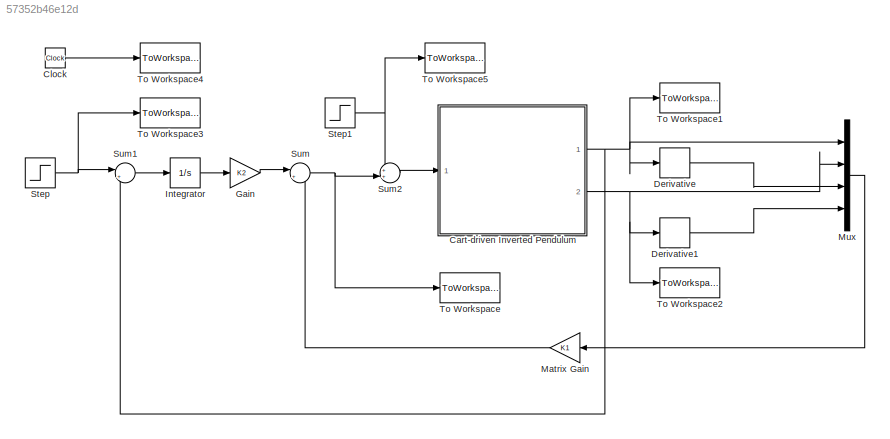
MODEL slx_57352b46e12d
KIND model
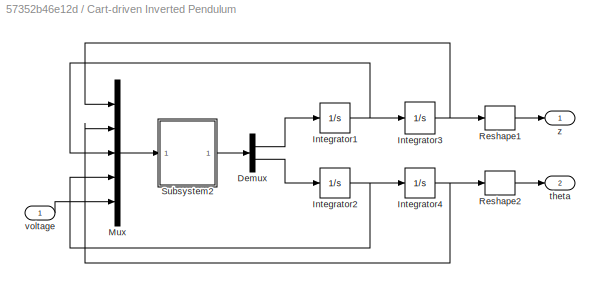
BLOCK [SubSystem] Cart-driven Inverted Pendulum
  FunctionWithSeparateData = off
  MaskHideContents = off
  MinAlgLoopOccurrences = off
  Opaque = off
  Ports = [1, 2]
  PropExecContextOutsideSubsystem = off
  RTWSystemCode = Auto
  RequestExecContextInheritance = off
BLOCK [Demux] Cart-driven Inverted Pendulum/Demux
  DisplayOption = bar
  Outputs = 2
  Ports = [1, 2]
BLOCK [Integrator] Cart-driven Inverted Pendulum/Integrator1
  InitialCondition = dz_0
  Ports = [1, 1]
BLOCK [Integrator] Cart-driven Inverted Pendulum/Integrator2
  InitialCondition = dtheta_0
  Ports = [1, 1]
BLOCK [Integrator] Cart-driven Inverted Pendulum/Integrator3
  InitialCondition = z_0
  Ports = [1, 1]
BLOCK [Integrator] Cart-driven Inverted Pendulum/Integrator4
  InitialCondition = theta_0
  Ports = [1, 1]
BLOCK [Mux] Cart-driven Inverted Pendulum/Mux
  DisplayOption = bar
  Inputs = 5
  Ports = [5, 1]
BLOCK [Reshape] Cart-driven Inverted Pendulum/Reshape1
  Ports = [1, 1]
BLOCK [Reshape] Cart-driven Inverted Pendulum/Reshape2
  Ports = [1, 1]
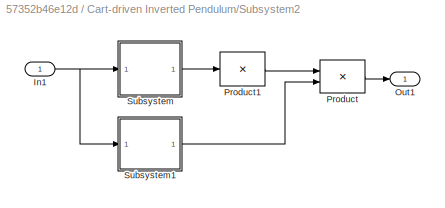
BLOCK [SubSystem] Cart-driven Inverted Pendulum/Subsystem2
  FunctionWithSeparateData = off
  MaskHideContents = off
  MinAlgLoopOccurrences = off
  Opaque = off
  Ports = [1, 1]
  PropExecContextOutsideSubsystem = off
  RTWSystemCode = Auto
  RequestExecContextInheritance = off
BLOCK [Inport] Cart-driven Inverted Pendulum/Subsystem2/In1
  IconDisplay = Port number
BLOCK [Outport] Cart-driven Inverted Pendulum/Subsystem2/Out1
  IconDisplay = Port number
BLOCK [Product] Cart-driven Inverted Pendulum/Subsystem2/Product
  Multiplication = Matrix(*)
  Ports = [2, 1]
  RndMeth = Floor
BLOCK [Product] Cart-driven Inverted Pendulum/Subsystem2/Product1
  Inputs = /
  Multiplication = Matrix(*)
  Ports = [1, 1]
  RndMeth = Floor
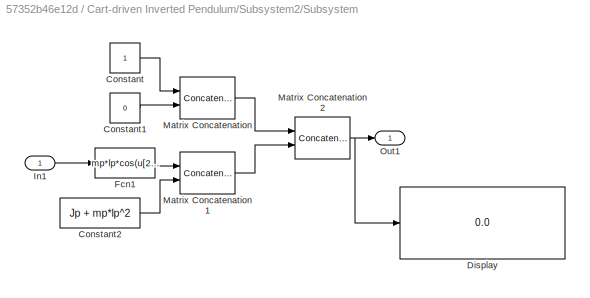
BLOCK [SubSystem] Cart-driven Inverted Pendulum/Subsystem2/Subsystem
  FunctionWithSeparateData = off
  MaskHideContents = off
  MinAlgLoopOccurrences = off
  Opaque = off
  Ports = [1, 1]
  PropExecContextOutsideSubsystem = off
  RTWSystemCode = Auto
  RequestExecContextInheritance = off
BLOCK [Constant] Cart-driven Inverted Pendulum/Subsystem2/Subsystem/Constant
BLOCK [Constant] Cart-driven Inverted Pendulum/Subsystem2/Subsystem/Constant1
  Value = 0
BLOCK [Constant] Cart-driven Inverted Pendulum/Subsystem2/Subsystem/Constant2
  Value = Jp + mp*lp^2
BLOCK [Display] Cart-driven Inverted Pendulum/Subsystem2/Subsystem/Display
  Decimation = 1
  Lockdown = off
  Ports = [1]
BLOCK [Fcn] Cart-driven Inverted Pendulum/Subsystem2/Subsystem/Fcn1
  Expr = mp*lp*cos(u[2])
BLOCK [Inport] Cart-driven Inverted Pendulum/Subsystem2/Subsystem/In1
  IconDisplay = Port number
BLOCK [Concatenate] Cart-driven Inverted Pendulum/Subsystem2/Subsystem/Matrix Concatenation
  ConcatenateDimension = 2
  Mode = Multidimensional array
  Ports = [2, 1]
BLOCK [Concatenate] Cart-driven Inverted Pendulum/Subsystem2/Subsystem/Matrix Concatenation1
  ConcatenateDimension = 2
  Mode = Multidimensional array
  Ports = [2, 1]
BLOCK [Concatenate] Cart-driven Inverted Pendulum/Subsystem2/Subsystem/Matrix Concatenation2
  Mode = Multidimensional array
  Ports = [2, 1]
BLOCK [Outport] Cart-driven Inverted Pendulum/Subsystem2/Subsystem/Out1
  IconDisplay = Port number
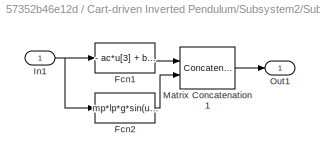
BLOCK [SubSystem] Cart-driven Inverted Pendulum/Subsystem2/Subsystem1
  FunctionWithSeparateData = off
  MaskHideContents = off
  MinAlgLoopOccurrences = off
  Opaque = off
  Ports = [1, 1]
  PropExecContextOutsideSubsystem = off
  RTWSystemCode = Auto
  RequestExecContextInheritance = off
BLOCK [Fcn] Cart-driven Inverted Pendulum/Subsystem2/Subsystem1/Fcn1
  Expr = - ac*u[3] + bc*u[5]
BLOCK [Fcn] Cart-driven Inverted Pendulum/Subsystem2/Subsystem1/Fcn2
  Expr = mp*lp*g*sin(u[2]) - mup*u[4]
BLOCK [Inport] Cart-driven Inverted Pendulum/Subsystem2/Subsystem1/In1
  IconDisplay = Port number
BLOCK [Concatenate] Cart-driven Inverted Pendulum/Subsystem2/Subsystem1/Matrix Concatenation1
  Mode = Multidimensional array
  Ports = [2, 1]
BLOCK [Outport] Cart-driven Inverted Pendulum/Subsystem2/Subsystem1/Out1
  IconDisplay = Port number
BLOCK [Outport] Cart-driven Inverted Pendulum/theta
  IconDisplay = Port number
  Port = 2
BLOCK [Inport] Cart-driven Inverted Pendulum/voltage
  IconDisplay = Port number
BLOCK [Outport] Cart-driven Inverted Pendulum/z
  IconDisplay = Port number
BLOCK [Clock] Clock
BLOCK [Derivative] Derivative
BLOCK [Derivative] Derivative1
BLOCK [Gain] Gain
  Gain = K2
BLOCK [Integrator] Integrator
  Ports = [1, 1]
BLOCK [Gain] Matrix Gain
  Gain = K1
  Multiplication = Matrix(K*u)
BLOCK [Mux] Mux
  DisplayOption = bar
  Ports = [4, 1]
BLOCK [Step] Step
  After = r0
  SampleTime = 0
  Time = 0
BLOCK [Step] Step1
  After = d0
  SampleTime = 0
  Time = t_dis
BLOCK [Sum] Sum
  IconShape = round
  Inputs = |++
  Ports = [2, 1]
BLOCK [Sum] Sum1
  IconShape = round
  Inputs = |+-
  Ports = [2, 1]
BLOCK [Sum] Sum2
  IconShape = round
  Inputs = ++|
  Ports = [2, 1]
BLOCK [ToWorkspace] To Workspace
  MaxDataPoints = inf
  Ports = [1]
  SampleTime = -1
  VariableName = u
BLOCK [ToWorkspace] To Workspace1
  MaxDataPoints = inf
  Ports = [1]
  SampleTime = -1
  VariableName = z
BLOCK [ToWorkspace] To Workspace2
  MaxDataPoints = inf
  Ports = [1]
  SampleTime = -1
  VariableName = theta
BLOCK [ToWorkspace] To Workspace3
  MaxDataPoints = inf
  Ports = [1]
  SampleTime = -1
  VariableName = r
BLOCK [ToWorkspace] To Workspace4
  MaxDataPoints = inf
  Ports = [1]
  SampleTime = -1
  VariableName = t
BLOCK [ToWorkspace] To Workspace5
  MaxDataPoints = inf
  Ports = [1]
  SampleTime = -1
  VariableName = d
LINE Cart-driven Inverted Pendulum/Demux:1 -> Cart-driven Inverted Pendulum/Integrator1:1
LINE Cart-driven Inverted Pendulum/Demux:2 -> Cart-driven Inverted Pendulum/Integrator2:1
NET Cart-driven Inverted Pendulum/Integrator1:1 -> Cart-driven Inverted Pendulum/Integrator3:1, Cart-driven Inverted Pendulum/Mux:3
NET Cart-driven Inverted Pendulum/Integrator2:1 -> Cart-driven Inverted Pendulum/Integrator4:1, Cart-driven Inverted Pendulum/Mux:4
NET Cart-driven Inverted Pendulum/Integrator3:1 -> Cart-driven Inverted Pendulum/Mux:1, Cart-driven Inverted Pendulum/Reshape1:1
NET Cart-driven Inverted Pendulum/Integrator4:1 -> Cart-driven Inverted Pendulum/Mux:2, Cart-driven Inverted Pendulum/Reshape2:1
LINE Cart-driven Inverted Pendulum/Mux:1 -> Cart-driven Inverted Pendulum/Subsystem2:1
LINE Cart-driven Inverted Pendulum/Reshape1:1 -> Cart-driven Inverted Pendulum/z:1
LINE Cart-driven Inverted Pendulum/Reshape2:1 -> Cart-driven Inverted Pendulum/theta:1
NET Cart-driven Inverted Pendulum/Subsystem2/In1:1 -> Cart-driven Inverted Pendulum/Subsystem2/Subsystem1:1, Cart-driven Inverted Pendulum/Subsystem2/Subsystem:1
LINE Cart-driven Inverted Pendulum/Subsystem2/Product1:1 -> Cart-driven Inverted Pendulum/Subsystem2/Product:1
LINE Cart-driven Inverted Pendulum/Subsystem2/Product:1 -> Cart-driven Inverted Pendulum/Subsystem2/Out1:1
LINE Cart-driven Inverted Pendulum/Subsystem2/Subsystem/Constant1:1 -> Cart-driven Inverted Pendulum/Subsystem2/Subsystem/Matrix Concatenation:2
LINE Cart-driven Inverted Pendulum/Subsystem2/Subsystem/Constant2:1 -> Cart-driven Inverted Pendulum/Subsystem2/Subsystem/Matrix Concatenation1:2
LINE Cart-driven Inverted Pendulum/Subsystem2/Subsystem/Constant:1 -> Cart-driven Inverted Pendulum/Subsystem2/Subsystem/Matrix Concatenation:1
LINE Cart-driven Inverted Pendulum/Subsystem2/Subsystem/Fcn1:1 -> Cart-driven Inverted Pendulum/Subsystem2/Subsystem/Matrix Concatenation1:1
LINE Cart-driven Inverted Pendulum/Subsystem2/Subsystem/In1:1 -> Cart-driven Inverted Pendulum/Subsystem2/Subsystem/Fcn1:1
LINE Cart-driven Inverted Pendulum/Subsystem2/Subsystem/Matrix Concatenation1:1 -> Cart-driven Inverted Pendulum/Subsystem2/Subsystem/Matrix Concatenation2:2
NET Cart-driven Inverted Pendulum/Subsystem2/Subsystem/Matrix Concatenation2:1 -> Cart-driven Inverted Pendulum/Subsystem2/Subsystem/Display:1, Cart-driven Inverted Pendulum/Subsystem2/Subsystem/Out1:1
LINE Cart-driven Inverted Pendulum/Subsystem2/Subsystem/Matrix Concatenation:1 -> Cart-driven Inverted Pendulum/Subsystem2/Subsystem/Matrix Concatenation2:1
LINE Cart-driven Inverted Pendulum/Subsystem2/Subsystem1/Fcn1:1 -> Cart-driven Inverted Pendulum/Subsystem2/Subsystem1/Matrix Concatenation1:1
LINE Cart-driven Inverted Pendulum/Subsystem2/Subsystem1/Fcn2:1 -> Cart-driven Inverted Pendulum/Subsystem2/Subsystem1/Matrix Concatenation1:2
NET Cart-driven Inverted Pendulum/Subsystem2/Subsystem1/In1:1 -> Cart-driven Inverted Pendulum/Subsystem2/Subsystem1/Fcn1:1, Cart-driven Inverted Pendulum/Subsystem2/Subsystem1/Fcn2:1
LINE Cart-driven Inverted Pendulum/Subsystem2/Subsystem1/Matrix Concatenation1:1 -> Cart-driven Inverted Pendulum/Subsystem2/Subsystem1/Out1:1
LINE Cart-driven Inverted Pendulum/Subsystem2/Subsystem1:1 -> Cart-driven Inverted Pendulum/Subsystem2/Product:2
LINE Cart-driven Inverted Pendulum/Subsystem2/Subsystem:1 -> Cart-driven Inverted Pendulum/Subsystem2/Product1:1
LINE Cart-driven Inverted Pendulum/Subsystem2:1 -> Cart-driven Inverted Pendulum/Demux:1
LINE Cart-driven Inverted Pendulum/voltage:1 -> Cart-driven Inverted Pendulum/Mux:5
NET Cart-driven Inverted Pendulum:1 -> Derivative:1, Mux:1, Sum1:2, To Workspace1:1
NET Cart-driven Inverted Pendulum:2 -> Derivative1:1, Mux:2, To Workspace2:1
LINE Clock:1 -> To Workspace4:1
LINE Derivative1:1 -> Mux:4
LINE Derivative:1 -> Mux:3
LINE Gain:1 -> Sum:1
LINE Integrator:1 -> Gain:1
LINE Matrix Gain:1 -> Sum:2
LINE Mux:1 -> Matrix Gain:1
NET Step1:1 -> Sum2:1, To Workspace5:1
NET Step:1 -> Sum1:1, To Workspace3:1
LINE Sum1:1 -> Integrator:1
LINE Sum2:1 -> Cart-driven Inverted Pendulum:1
NET Sum:1 -> Sum2:2, To Workspace:1
note: NET lines group one-source signal fan-out (src -> all destinations, sorted); 1:1 wires keep LINE
